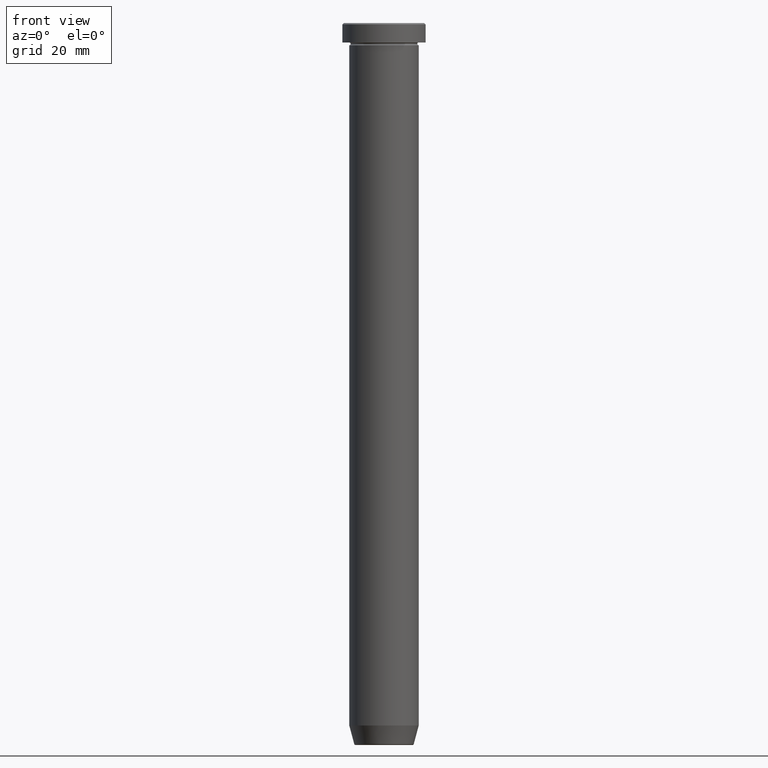
[diagram: clean part render]
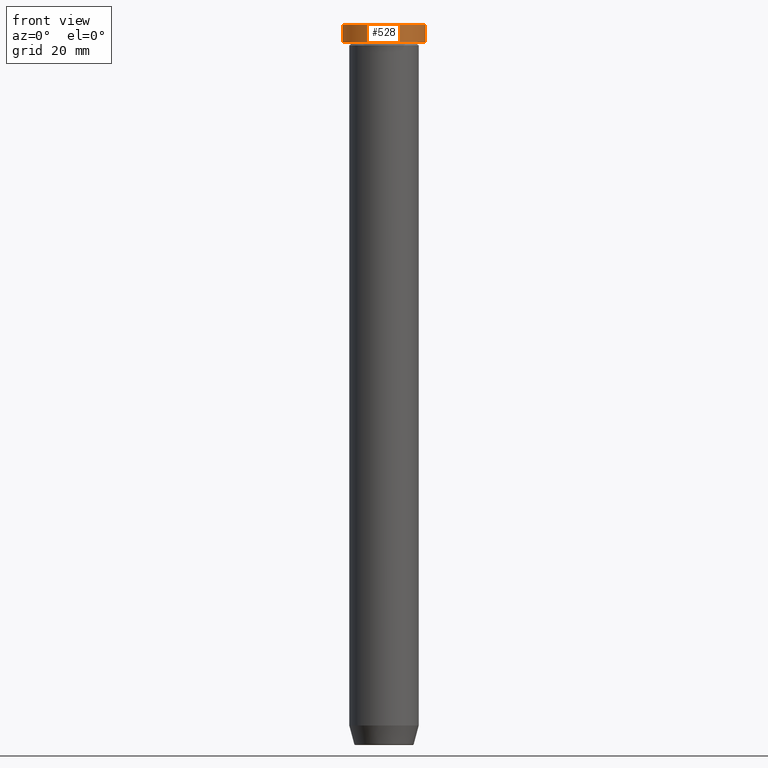
[diagram: same view with one face highlighted and labeled with its STEP entity id]
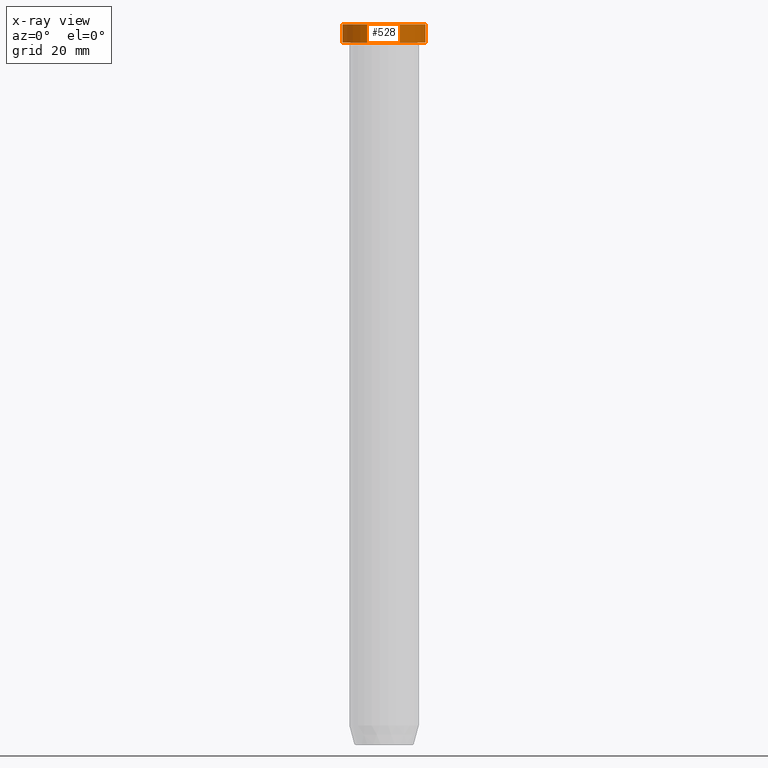
[diagram: x-ray of the same camera — body ghosted, the highlighted face saturated]
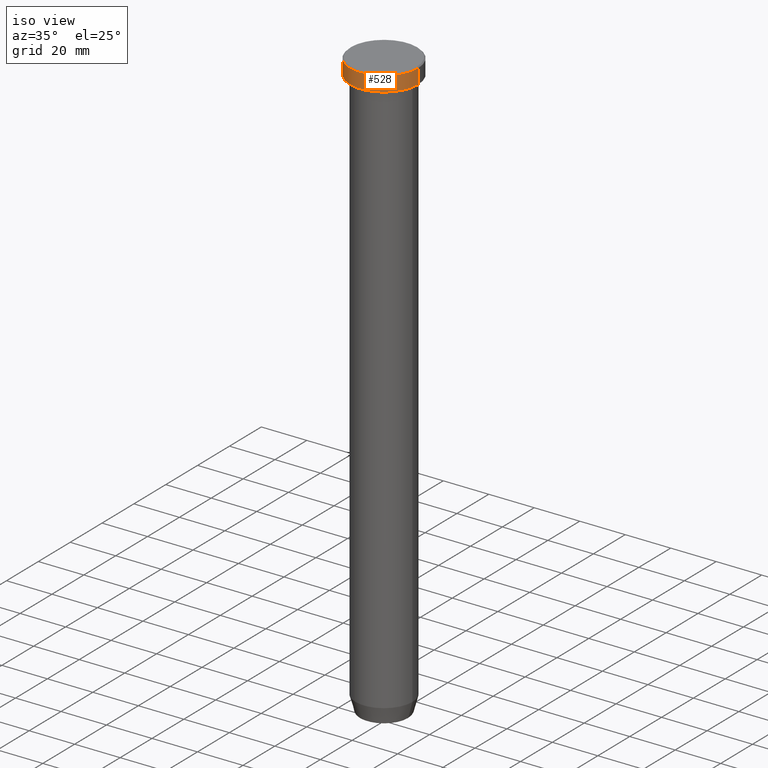
[diagram: same view with one face highlighted and labeled with its STEP entity id]
A machine part, front view. The second image highlights one B-rep face of the part: STEP entity #528.
The next image is the same camera in x-ray: the body ghosted, the highlighted face saturated — about 0% of this face is hidden behind the body in this view.
A second angle (iso view) of the same face is appended — the face is thin or edge-on in the first view.
In plain terms, the highlighted cylindrical surface (partial cylindrical patch) has radius 15 mm, axis along (-0, -0, 1).
Its self-contained STEP definition (entity closure, byte-faithful):
#9 = LINE ( 'NONE', #290, #281 ) ;
#25 = CIRCLE ( 'NONE', #316, 15.00000000000000000 ) ;
#34 = CARTESIAN_POINT ( 'NONE',  ( 0.000000000000000000, 0.000000000000000000, -6.999999999999999112 ) ) ;
#36 = CARTESIAN_POINT ( 'NONE',  ( 15.00000000000000000, 0.000000000000000000, -0.4999999999999831246 ) ) ;
#38 = ORIENTED_EDGE ( 'NONE', *, *, #238, .F. ) ;
#40 = CARTESIAN_POINT ( 'NONE',  ( -15.00000000000000000, 1.836970198721029589E-15, -0.4999999999999831246 ) ) ;
#44 = DIRECTION ( 'NONE',  ( 1.000000000000000000, 0.000000000000000000, 0.000000000000000000 ) ) ;
#79 = CARTESIAN_POINT ( 'NONE',  ( 0.000000000000000000, 0.000000000000000000, 0.000000000000000000 ) ) ;
#131 = DIRECTION ( 'NONE',  ( -0.000000000000000000, -0.000000000000000000, 1.000000000000000000 ) ) ;
#159 = CIRCLE ( 'NONE', #236, 15.00000000000000000 ) ;
#172 = VECTOR ( 'NONE', #131, 1000.000000000000000 ) ;
#183 = VERTEX_POINT ( 'NONE', #36 ) ;
#188 = EDGE_CURVE ( 'NONE', #585, #183, #405, .T. ) ;
#236 = AXIS2_PLACEMENT_3D ( 'NONE', #458, #310, #510 ) ;
#238 = EDGE_CURVE ( 'NONE', #382, #353, #9, .T. ) ;
#265 = CARTESIAN_POINT ( 'NONE',  ( 15.00000000000000000, 0.000000000000000000, 0.000000000000000000 ) ) ;
#281 = VECTOR ( 'NONE', #486, 1000.000000000000000 ) ;
#290 = CARTESIAN_POINT ( 'NONE',  ( -15.00000000000000000, 1.836970198721029589E-15, 0.000000000000000000 ) ) ;
#310 = DIRECTION ( 'NONE',  ( 0.000000000000000000, 0.000000000000000000, -1.000000000000000000 ) ) ;
#316 = AXIS2_PLACEMENT_3D ( 'NONE', #34, #467, #403 ) ;
#338 = ORIENTED_EDGE ( 'NONE', *, *, #557, .T. ) ;
#341 = CARTESIAN_POINT ( 'NONE',  ( -15.00000000000000000, 1.836970198721029589E-15, -6.999999999999999112 ) ) ;
#353 = VERTEX_POINT ( 'NONE', #40 ) ;
#382 = VERTEX_POINT ( 'NONE', #341 ) ;
#399 = DIRECTION ( 'NONE',  ( -0.000000000000000000, -0.000000000000000000, 1.000000000000000000 ) ) ;
#403 = DIRECTION ( 'NONE',  ( 1.000000000000000000, 0.000000000000000000, 0.000000000000000000 ) ) ;
#405 = LINE ( 'NONE', #265, #172 ) ;
#410 = ORIENTED_EDGE ( 'NONE', *, *, #594, .T. ) ;
#414 = AXIS2_PLACEMENT_3D ( 'NONE', #79, #399, #44 ) ;
#447 = FACE_OUTER_BOUND ( 'NONE', #484, .T. ) ;
#458 = CARTESIAN_POINT ( 'NONE',  ( 0.000000000000000000, 0.000000000000000000, -0.4999999999999831246 ) ) ;
#467 = DIRECTION ( 'NONE',  ( -0.000000000000000000, -0.000000000000000000, 1.000000000000000000 ) ) ;
#484 = EDGE_LOOP ( 'NONE', ( #38, #338, #496, #410 ) ) ;
#486 = DIRECTION ( 'NONE',  ( -0.000000000000000000, -0.000000000000000000, 1.000000000000000000 ) ) ;
#496 = ORIENTED_EDGE ( 'NONE', *, *, #188, .T. ) ;
#502 = CYLINDRICAL_SURFACE ( 'NONE', #414, 15.00000000000000000 ) ;
#510 = DIRECTION ( 'NONE',  ( 1.000000000000000000, 0.000000000000000000, 0.000000000000000000 ) ) ;
#528 = ADVANCED_FACE ( 'NONE', ( #447 ), #502, .T. ) ;
#543 = CARTESIAN_POINT ( 'NONE',  ( 15.00000000000000000, 0.000000000000000000, -6.999999999999999112 ) ) ;
#557 = EDGE_CURVE ( 'NONE', #382, #585, #25, .T. ) ;
#585 = VERTEX_POINT ( 'NONE', #543 ) ;
#594 = EDGE_CURVE ( 'NONE', #183, #353, #159, .T. ) ;